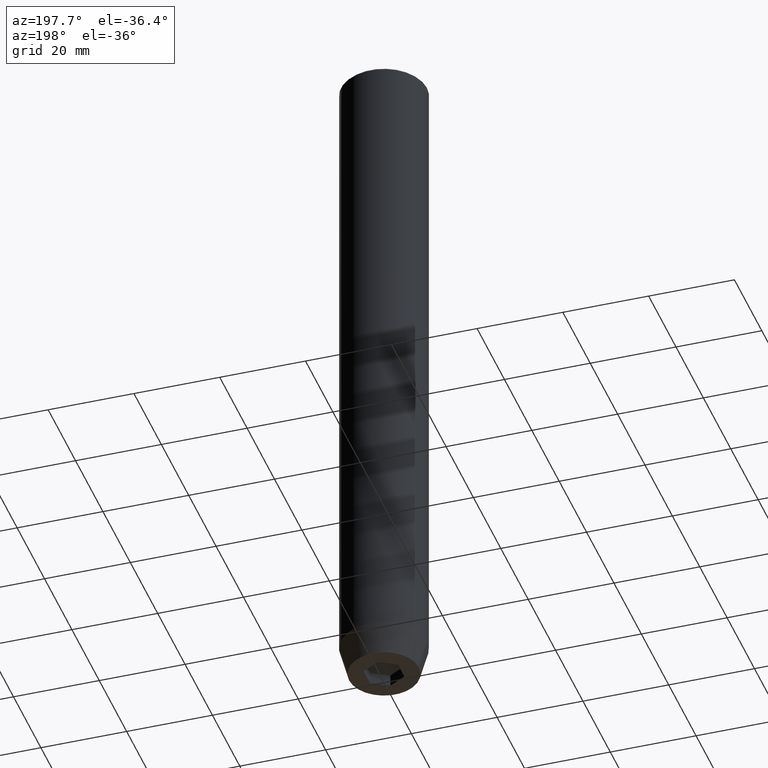
[diagram: clean part render]
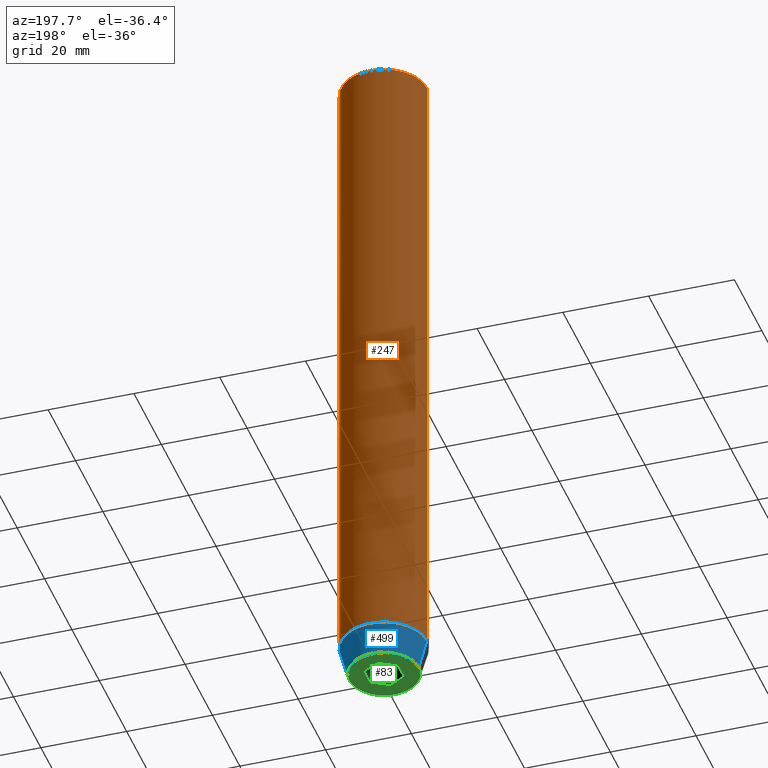
[diagram: same view with three faces highlighted in distinct colors, each labeled with its STEP entity id]
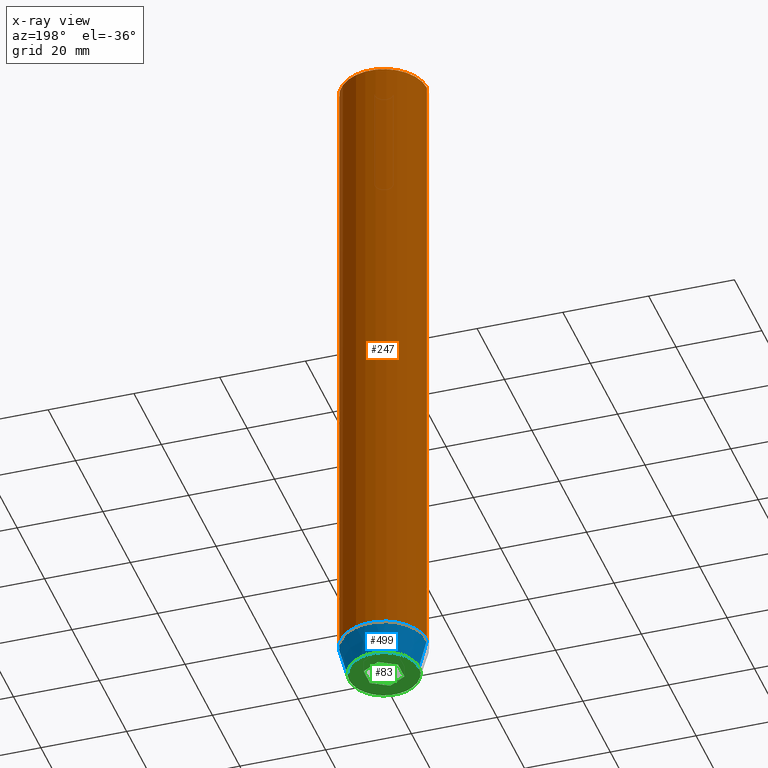
[diagram: x-ray of the same camera — body ghosted, the three highlighted faces saturated]
A machine part, auxiliary view with three faces highlighted in distinct colors.
The next image is the same camera in x-ray (body ghosted, the three faces saturated) — at least one of them is partly hidden behind the body in this view.
Their STEP definitions:

[orange] entity #247 — the highlighted cylindrical surface (partial cylindrical patch) has radius 10 mm, axis along (-0, -0, 1).
#3 = EDGE_CURVE ( 'NONE', #496, #109, #55, .T. ) ;
#14 = FACE_OUTER_BOUND ( 'NONE', #91, .T. ) ;
#55 = LINE ( 'NONE', #378, #57 ) ;
#57 = VECTOR ( 'NONE', #246, 1000.000000000000000 ) ;
#70 = DIRECTION ( 'NONE',  ( -0.000000000000000000, -0.000000000000000000, 1.000000000000000000 ) ) ;
#79 = CIRCLE ( 'NONE', #161, 10.00000000000000000 ) ;
#91 = EDGE_LOOP ( 'NONE', ( #380, #174, #341, #326 ) ) ;
#109 = VERTEX_POINT ( 'NONE', #475 ) ;
#137 = LINE ( 'NONE', #524, #289 ) ;
#161 = AXIS2_PLACEMENT_3D ( 'NONE', #441, #215, #294 ) ;
#172 = EDGE_CURVE ( 'NONE', #586, #109, #288, .T. ) ;
#174 = ORIENTED_EDGE ( 'NONE', *, *, #276, .T. ) ;
#215 = DIRECTION ( 'NONE',  ( -0.000000000000000000, -0.000000000000000000, 1.000000000000000000 ) ) ;
#246 = DIRECTION ( 'NONE',  ( -0.000000000000000000, -0.000000000000000000, 1.000000000000000000 ) ) ;
#247 = ADVANCED_FACE ( 'NONE', ( #14 ), #386, .T. ) ;
#260 = CARTESIAN_POINT ( 'NONE',  ( 0.000000000000000000, 0.000000000000000000, -0.5000000000000264233 ) ) ;
#276 = EDGE_CURVE ( 'NONE', #330, #586, #137, .T. ) ;
#288 = CIRCLE ( 'NONE', #370, 10.00000000000000000 ) ;
#289 = VECTOR ( 'NONE', #438, 1000.000000000000000 ) ;
#294 = DIRECTION ( 'NONE',  ( 1.000000000000000000, 0.000000000000000000, 0.000000000000000000 ) ) ;
#299 = CARTESIAN_POINT ( 'NONE',  ( 0.000000000000000000, 0.000000000000000000, 0.000000000000000000 ) ) ;
#307 = CARTESIAN_POINT ( 'NONE',  ( -10.00000000000000000, 1.224646799147353256E-15, -0.5000000000000264233 ) ) ;
#316 = DIRECTION ( 'NONE',  ( 1.000000000000000000, 0.000000000000000000, 0.000000000000000000 ) ) ;
#326 = ORIENTED_EDGE ( 'NONE', *, *, #3, .F. ) ;
#330 = VERTEX_POINT ( 'NONE', #552 ) ;
#341 = ORIENTED_EDGE ( 'NONE', *, *, #172, .T. ) ;
#370 = AXIS2_PLACEMENT_3D ( 'NONE', #260, #447, #316 ) ;
#378 = CARTESIAN_POINT ( 'NONE',  ( 10.00000000000000000, 0.000000000000000000, 0.000000000000000000 ) ) ;
#380 = ORIENTED_EDGE ( 'NONE', *, *, #403, .T. ) ;
#386 = CYLINDRICAL_SURFACE ( 'NONE', #479, 10.00000000000000000 ) ;
#403 = EDGE_CURVE ( 'NONE', #496, #330, #79, .T. ) ;
#438 = DIRECTION ( 'NONE',  ( -0.000000000000000000, -0.000000000000000000, 1.000000000000000000 ) ) ;
#441 = CARTESIAN_POINT ( 'NONE',  ( 0.000000000000000000, 0.000000000000000000, -152.9999999999999716 ) ) ;
#447 = DIRECTION ( 'NONE',  ( 0.000000000000000000, 0.000000000000000000, -1.000000000000000000 ) ) ;
#475 = CARTESIAN_POINT ( 'NONE',  ( 10.00000000000000000, 0.000000000000000000, -0.5000000000000264233 ) ) ;
#479 = AXIS2_PLACEMENT_3D ( 'NONE', #299, #70, #525 ) ;
#496 = VERTEX_POINT ( 'NONE', #554 ) ;
#524 = CARTESIAN_POINT ( 'NONE',  ( -10.00000000000000000, 1.224646799147353256E-15, 0.000000000000000000 ) ) ;
#525 = DIRECTION ( 'NONE',  ( 1.000000000000000000, 0.000000000000000000, 0.000000000000000000 ) ) ;
#552 = CARTESIAN_POINT ( 'NONE',  ( -10.00000000000000000, 1.224646799147353256E-15, -152.9999999999999716 ) ) ;
#554 = CARTESIAN_POINT ( 'NONE',  ( 10.00000000000000000, 0.000000000000000000, -152.9999999999999716 ) ) ;
#586 = VERTEX_POINT ( 'NONE', #307 ) ;

[blue] entity #499 — the highlighted conical surface has half-angle 15 deg.
#20 = DIRECTION ( 'NONE',  ( 1.000000000000000000, 0.000000000000000000, 0.000000000000000000 ) ) ;
#21 = VECTOR ( 'NONE', #292, 1000.000000000000114 ) ;
#39 = EDGE_CURVE ( 'NONE', #198, #496, #560, .T. ) ;
#42 = EDGE_LOOP ( 'NONE', ( #278, #99, #311, #159 ) ) ;
#73 = CARTESIAN_POINT ( 'NONE',  ( -8.124355652982130138, 1.109796706851640162E-15, -160.0000000000000000 ) ) ;
#79 = CIRCLE ( 'NONE', #161, 10.00000000000000000 ) ;
#99 = ORIENTED_EDGE ( 'NONE', *, *, #327, .T. ) ;
#100 = VECTOR ( 'NONE', #466, 1000.000000000000114 ) ;
#108 = CARTESIAN_POINT ( 'NONE',  ( -10.00000000000000000, 1.224646799147353256E-15, -152.9999999999999716 ) ) ;
#158 = CARTESIAN_POINT ( 'NONE',  ( 0.000000000000000000, 0.000000000000000000, -152.9999999999999716 ) ) ;
#159 = ORIENTED_EDGE ( 'NONE', *, *, #39, .F. ) ;
#161 = AXIS2_PLACEMENT_3D ( 'NONE', #441, #215, #294 ) ;
#198 = VERTEX_POINT ( 'NONE', #329 ) ;
#215 = DIRECTION ( 'NONE',  ( -0.000000000000000000, -0.000000000000000000, 1.000000000000000000 ) ) ;
#240 = DIRECTION ( 'NONE',  ( -0.000000000000000000, -0.000000000000000000, 1.000000000000000000 ) ) ;
#248 = DIRECTION ( 'NONE',  ( -0.000000000000000000, -0.000000000000000000, 1.000000000000000000 ) ) ;
#249 = AXIS2_PLACEMENT_3D ( 'NONE', #158, #248, #20 ) ;
#253 = CARTESIAN_POINT ( 'NONE',  ( 10.00000000000000000, 0.000000000000000000, -152.9999999999999716 ) ) ;
#278 = ORIENTED_EDGE ( 'NONE', *, *, #547, .T. ) ;
#287 = FACE_OUTER_BOUND ( 'NONE', #42, .T. ) ;
#292 = DIRECTION ( 'NONE',  ( 0.2588190451025210170, 0.000000000000000000, 0.9659258262890680902 ) ) ;
#294 = DIRECTION ( 'NONE',  ( 1.000000000000000000, 0.000000000000000000, 0.000000000000000000 ) ) ;
#311 = ORIENTED_EDGE ( 'NONE', *, *, #403, .F. ) ;
#327 = EDGE_CURVE ( 'NONE', #544, #330, #549, .T. ) ;
#329 = CARTESIAN_POINT ( 'NONE',  ( 8.124355652982130138, 0.000000000000000000, -160.0000000000000000 ) ) ;
#330 = VERTEX_POINT ( 'NONE', #552 ) ;
#379 = AXIS2_PLACEMENT_3D ( 'NONE', #394, #240, #383 ) ;
#383 = DIRECTION ( 'NONE',  ( 1.000000000000000000, 0.000000000000000000, 0.000000000000000000 ) ) ;
#393 = CONICAL_SURFACE ( 'NONE', #249, 10.00000000000000000, 0.2617993877991497409 ) ;
#394 = CARTESIAN_POINT ( 'NONE',  ( 0.000000000000000000, 0.000000000000000000, -160.0000000000000000 ) ) ;
#403 = EDGE_CURVE ( 'NONE', #496, #330, #79, .T. ) ;
#441 = CARTESIAN_POINT ( 'NONE',  ( 0.000000000000000000, 0.000000000000000000, -152.9999999999999716 ) ) ;
#466 = DIRECTION ( 'NONE',  ( -0.2588190451025210170, 3.169619151431768639E-17, 0.9659258262890680902 ) ) ;
#496 = VERTEX_POINT ( 'NONE', #554 ) ;
#499 = ADVANCED_FACE ( 'NONE', ( #287 ), #393, .T. ) ;
#544 = VERTEX_POINT ( 'NONE', #73 ) ;
#547 = EDGE_CURVE ( 'NONE', #198, #544, #548, .T. ) ;
#548 = CIRCLE ( 'NONE', #379, 8.124355652982130138 ) ;
#549 = LINE ( 'NONE', #108, #100 ) ;
#552 = CARTESIAN_POINT ( 'NONE',  ( -10.00000000000000000, 1.224646799147353256E-15, -152.9999999999999716 ) ) ;
#554 = CARTESIAN_POINT ( 'NONE',  ( 10.00000000000000000, 0.000000000000000000, -152.9999999999999716 ) ) ;
#560 = LINE ( 'NONE', #253, #21 ) ;

[green] entity #83 — the highlighted planar face has unit normal (0, 0, -1).
#2 = DIRECTION ( 'NONE',  ( 0.8660254037844385966, -0.5000000000000001110, 0.000000000000000000 ) ) ;
#12 = LINE ( 'NONE', #65, #312 ) ;
#28 = EDGE_CURVE ( 'NONE', #388, #84, #12, .T. ) ;
#34 = VECTOR ( 'NONE', #2, 1000.000000000000000 ) ;
#65 = CARTESIAN_POINT ( 'NONE',  ( -4.000000000000000000, 0.000000000000000000, -160.0000000000000000 ) ) ;
#66 = DIRECTION ( 'NONE',  ( -0.8660254037844384856, 0.5000000000000002220, 0.000000000000000000 ) ) ;
#67 = DIRECTION ( 'NONE',  ( 0.000000000000000000, 1.000000000000000000, 0.000000000000000000 ) ) ;
#68 = LINE ( 'NONE', #204, #494 ) ;
#73 = CARTESIAN_POINT ( 'NONE',  ( -8.124355652982130138, 1.109796706851640162E-15, -160.0000000000000000 ) ) ;
#82 = CARTESIAN_POINT ( 'NONE',  ( 0.000000000000000000, 8.124355652982130138, -160.0000000000000000 ) ) ;
#83 = ADVANCED_FACE ( 'NONE', ( #486, #309 ), #489, .T. ) ;
#84 = VERTEX_POINT ( 'NONE', #497 ) ;
#98 = ORIENTED_EDGE ( 'NONE', *, *, #184, .F. ) ;
#113 = AXIS2_PLACEMENT_3D ( 'NONE', #216, #267, #226 ) ;
#119 = ORIENTED_EDGE ( 'NONE', *, *, #306, .F. ) ;
#132 = EDGE_CURVE ( 'NONE', #392, #426, #416, .T. ) ;
#142 = CARTESIAN_POINT ( 'NONE',  ( 2.000000000000000444, 3.464101615137754386, -160.0000000000000000 ) ) ;
#152 = CARTESIAN_POINT ( 'NONE',  ( 4.000000000000000000, 2.309401076758503368, -160.0000000000000000 ) ) ;
#165 = EDGE_CURVE ( 'NONE', #545, #356, #190, .T. ) ;
#184 = EDGE_CURVE ( 'NONE', #544, #198, #528, .T. ) ;
#189 = EDGE_CURVE ( 'NONE', #426, #545, #369, .T. ) ;
#190 = LINE ( 'NONE', #541, #546 ) ;
#191 = ORIENTED_EDGE ( 'NONE', *, *, #189, .F. ) ;
#198 = VERTEX_POINT ( 'NONE', #329 ) ;
#204 = CARTESIAN_POINT ( 'NONE',  ( -2.000000000000000000, 3.464101615137754830, -160.0000000000000000 ) ) ;
#216 = CARTESIAN_POINT ( 'NONE',  ( 0.000000000000000000, 0.000000000000000000, -160.0000000000000000 ) ) ;
#218 = DIRECTION ( 'NONE',  ( -1.000000000000000000, 0.000000000000000000, -0.000000000000000000 ) ) ;
#226 = DIRECTION ( 'NONE',  ( 1.000000000000000000, 0.000000000000000000, 0.000000000000000000 ) ) ;
#232 = CARTESIAN_POINT ( 'NONE',  ( 4.336808689942017736E-16, -4.618802153517006737, -160.0000000000000000 ) ) ;
#240 = DIRECTION ( 'NONE',  ( -0.000000000000000000, -0.000000000000000000, 1.000000000000000000 ) ) ;
#254 = CARTESIAN_POINT ( 'NONE',  ( 4.000000000000000000, -2.309401076758502480, -160.0000000000000000 ) ) ;
#255 = CARTESIAN_POINT ( 'NONE',  ( 2.168404344971008868E-16, 4.618802153517006737, -160.0000000000000000 ) ) ;
#267 = DIRECTION ( 'NONE',  ( -0.000000000000000000, -0.000000000000000000, 1.000000000000000000 ) ) ;
#305 = CARTESIAN_POINT ( 'NONE',  ( -4.000000000000000000, -2.309401076758503368, -160.0000000000000000 ) ) ;
#306 = EDGE_CURVE ( 'NONE', #84, #392, #68, .T. ) ;
#309 = FACE_OUTER_BOUND ( 'NONE', #450, .T. ) ;
#312 = VECTOR ( 'NONE', #67, 1000.000000000000000 ) ;
#317 = DIRECTION ( 'NONE',  ( 0.000000000000000000, 0.000000000000000000, -1.000000000000000000 ) ) ;
#325 = DIRECTION ( 'NONE',  ( 0.8660254037844387076, 0.5000000000000001110, 0.000000000000000000 ) ) ;
#328 = CARTESIAN_POINT ( 'NONE',  ( 4.000000000000000000, 0.000000000000000000, -160.0000000000000000 ) ) ;
#329 = CARTESIAN_POINT ( 'NONE',  ( 8.124355652982130138, 0.000000000000000000, -160.0000000000000000 ) ) ;
#337 = ORIENTED_EDGE ( 'NONE', *, *, #511, .F. ) ;
#346 = LINE ( 'NONE', #437, #408 ) ;
#352 = ORIENTED_EDGE ( 'NONE', *, *, #132, .F. ) ;
#353 = DIRECTION ( 'NONE',  ( -0.8660254037844384856, -0.5000000000000002220, 0.000000000000000000 ) ) ;
#356 = VERTEX_POINT ( 'NONE', #232 ) ;
#369 = LINE ( 'NONE', #328, #390 ) ;
#379 = AXIS2_PLACEMENT_3D ( 'NONE', #394, #240, #383 ) ;
#382 = ORIENTED_EDGE ( 'NONE', *, *, #28, .F. ) ;
#383 = DIRECTION ( 'NONE',  ( 1.000000000000000000, 0.000000000000000000, 0.000000000000000000 ) ) ;
#388 = VERTEX_POINT ( 'NONE', #305 ) ;
#390 = VECTOR ( 'NONE', #505, 1000.000000000000000 ) ;
#392 = VERTEX_POINT ( 'NONE', #255 ) ;
#394 = CARTESIAN_POINT ( 'NONE',  ( 0.000000000000000000, 0.000000000000000000, -160.0000000000000000 ) ) ;
#408 = VECTOR ( 'NONE', #66, 1000.000000000000114 ) ;
#416 = LINE ( 'NONE', #142, #34 ) ;
#421 = ORIENTED_EDGE ( 'NONE', *, *, #547, .F. ) ;
#426 = VERTEX_POINT ( 'NONE', #152 ) ;
#437 = CARTESIAN_POINT ( 'NONE',  ( -2.000000000000000888, -3.464101615137754386, -160.0000000000000000 ) ) ;
#450 = EDGE_LOOP ( 'NONE', ( #421, #98 ) ) ;
#486 = FACE_BOUND ( 'NONE', #500, .T. ) ;
#489 = PLANE ( 'NONE',  #569 ) ;
#494 = VECTOR ( 'NONE', #325, 999.9999999999998863 ) ;
#497 = CARTESIAN_POINT ( 'NONE',  ( -4.000000000000000000, 2.309401076758503368, -160.0000000000000000 ) ) ;
#500 = EDGE_LOOP ( 'NONE', ( #119, #382, #337, #553, #191, #352 ) ) ;
#505 = DIRECTION ( 'NONE',  ( 0.000000000000000000, -1.000000000000000000, 0.000000000000000000 ) ) ;
#511 = EDGE_CURVE ( 'NONE', #356, #388, #346, .T. ) ;
#528 = CIRCLE ( 'NONE', #113, 8.124355652982130138 ) ;
#541 = CARTESIAN_POINT ( 'NONE',  ( 2.000000000000000888, -3.464101615137754386, -160.0000000000000000 ) ) ;
#544 = VERTEX_POINT ( 'NONE', #73 ) ;
#545 = VERTEX_POINT ( 'NONE', #254 ) ;
#546 = VECTOR ( 'NONE', #353, 1000.000000000000114 ) ;
#547 = EDGE_CURVE ( 'NONE', #198, #544, #548, .T. ) ;
#548 = CIRCLE ( 'NONE', #379, 8.124355652982130138 ) ;
#553 = ORIENTED_EDGE ( 'NONE', *, *, #165, .F. ) ;
#569 = AXIS2_PLACEMENT_3D ( 'NONE', #82, #317, #218 ) ;